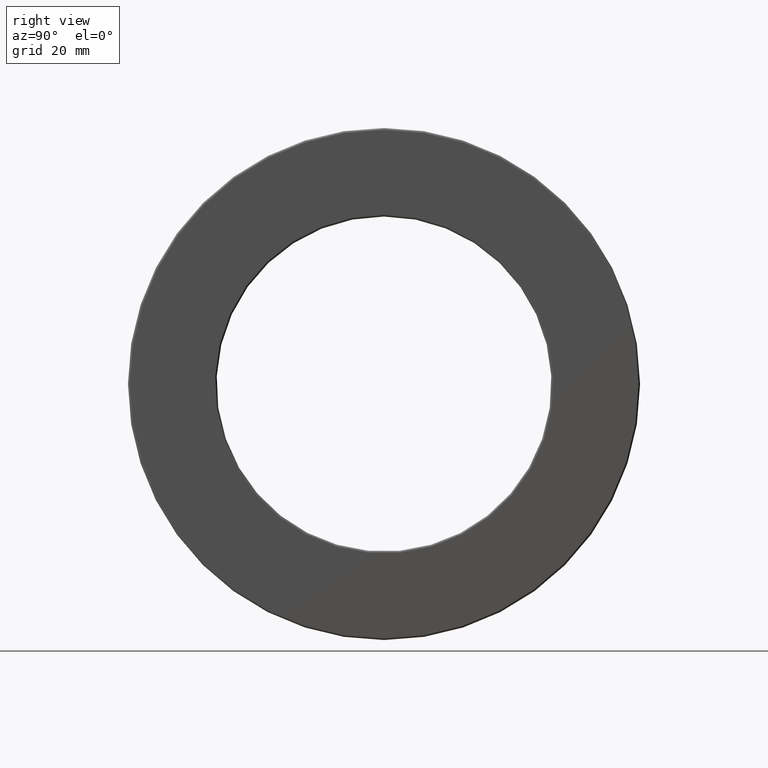
[diagram: clean part render]
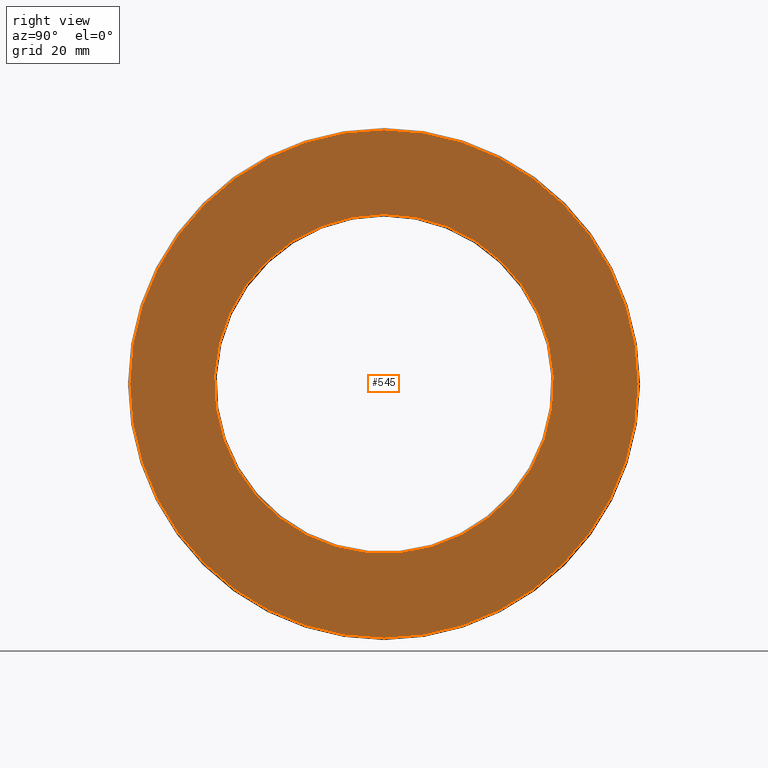
[diagram: same view with one face highlighted and labeled with its STEP entity id]
A machine part, right view. The second image highlights one B-rep face of the part: STEP entity #545.
In plain terms, the highlighted planar face has unit normal (1, 0, 0).
Its self-contained STEP definition (entity closure, byte-faithful):
#69 = DIRECTION ( 'NONE',  ( 0.0000000000000000000, 0.0000000000000000000, -1.000000000000000000 ) ) ;
#108 = CIRCLE ( 'NONE', #1051, 2.464375000000000000 ) ;
#172 = DIRECTION ( 'NONE',  ( 0.0000000000000000000, 0.0000000000000000000, 1.000000000000000000 ) ) ;
#215 = AXIS2_PLACEMENT_3D ( 'NONE', #527, #1307, #69 ) ;
#235 = ORIENTED_EDGE ( 'NONE', *, *, #1069, .T. ) ;
#293 = FACE_OUTER_BOUND ( 'NONE', #648, .T. ) ;
#367 = ORIENTED_EDGE ( 'NONE', *, *, #1342, .F. ) ;
#468 = DIRECTION ( 'NONE',  ( 0.0000000000000000000, 0.0000000000000000000, 1.000000000000000000 ) ) ;
#512 = CARTESIAN_POINT ( 'NONE',  ( 0.5000000000000000000, 0.0000000000000000000, 0.0000000000000000000 ) ) ;
#527 = CARTESIAN_POINT ( 'NONE',  ( 0.5000000000000000000, 0.0000000000000000000, 0.0000000000000000000 ) ) ;
#545 = ADVANCED_FACE ( 'NONE', ( #850, #293 ), #956, .T. ) ;
#577 = CARTESIAN_POINT ( 'NONE',  ( 0.5000000000000000000, 0.0000000000000000000, 0.0000000000000000000 ) ) ;
#648 = EDGE_LOOP ( 'NONE', ( #367 ) ) ;
#706 = VERTEX_POINT ( 'NONE', #1271 ) ;
#850 = FACE_BOUND ( 'NONE', #1184, .T. ) ;
#853 = VERTEX_POINT ( 'NONE', #1036 ) ;
#920 = DIRECTION ( 'NONE',  ( -1.000000000000000000, -0.0000000000000000000, -0.0000000000000000000 ) ) ;
#956 = PLANE ( 'NONE',  #215 ) ;
#1036 = CARTESIAN_POINT ( 'NONE',  ( 0.5000000000000000000, 0.0000000000000000000, 1.645000000000000000 ) ) ;
#1051 = AXIS2_PLACEMENT_3D ( 'NONE', #577, #920, #468 ) ;
#1069 = EDGE_CURVE ( 'NONE', #853, #853, #1470, .T. ) ;
#1084 = AXIS2_PLACEMENT_3D ( 'NONE', #512, #1189, #172 ) ;
#1184 = EDGE_LOOP ( 'NONE', ( #235 ) ) ;
#1189 = DIRECTION ( 'NONE',  ( -1.000000000000000000, -0.0000000000000000000, -0.0000000000000000000 ) ) ;
#1271 = CARTESIAN_POINT ( 'NONE',  ( 0.5000000000000000000, 0.0000000000000000000, 2.464375000000000000 ) ) ;
#1307 = DIRECTION ( 'NONE',  ( 1.000000000000000000, 0.0000000000000000000, 0.0000000000000000000 ) ) ;
#1342 = EDGE_CURVE ( 'NONE', #706, #706, #108, .T. ) ;
#1470 = CIRCLE ( 'NONE', #1084, 1.645000000000000000 ) ;